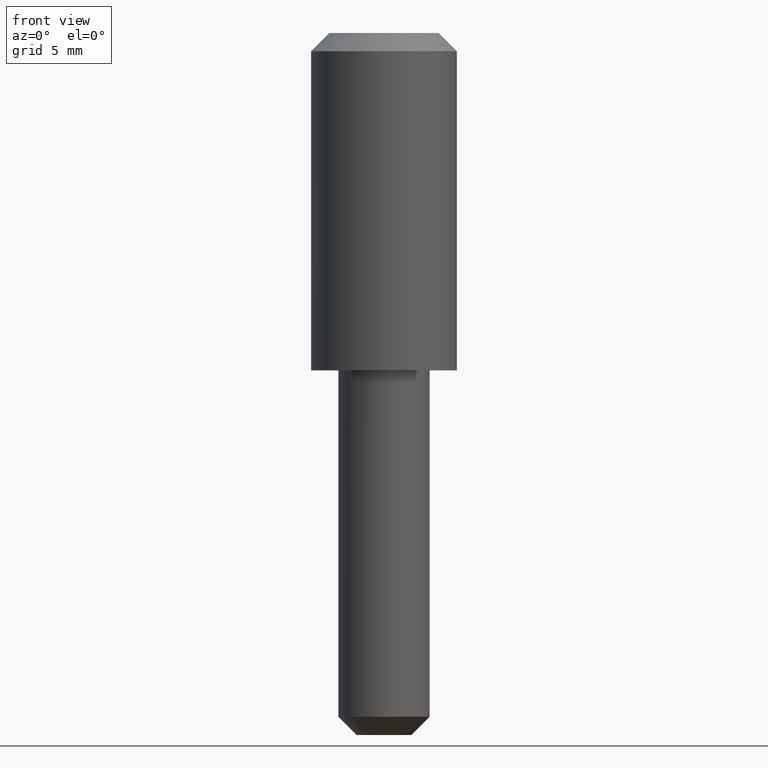
[diagram: clean part render]
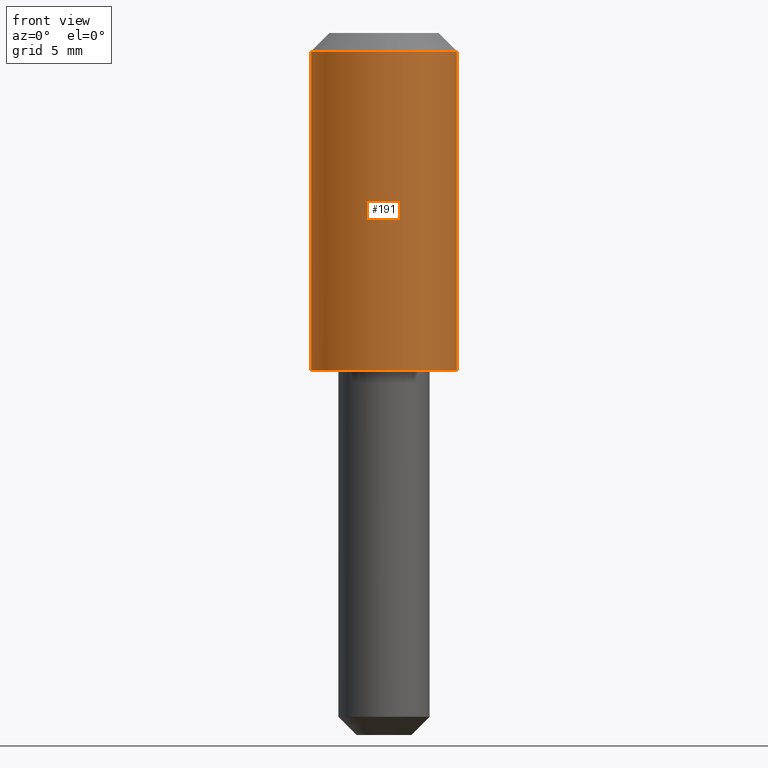
[diagram: same view with one face highlighted and labeled with its STEP entity id]
A machine part, front view. The second image highlights one B-rep face of the part: STEP entity #191.
In plain terms, the highlighted cylindrical surface (partial cylindrical patch) has radius 4 mm, axis along (0, 0, 1).
Its self-contained STEP definition (entity closure, byte-faithful):
#102=CARTESIAN_POINT('',(-4.000000000000007,2.143132E-015,17.500000000000000));
#103=VERTEX_POINT('',#102);
#110=CARTESIAN_POINT('',(4.000000000000028,2.143132E-015,17.500000000000000));
#111=VERTEX_POINT('',#110);
#112=CARTESIAN_POINT('',(0.0,2.143132E-015,17.500000000000000));
#113=DIRECTION('',(0.0,-1.224647E-016,-1.0));
#114=DIRECTION('',(-1.0,0.0,0.0));
#115=AXIS2_PLACEMENT_3D('',#112,#113,#114);
#116=CIRCLE('',#115,4.000000000000004);
#117=EDGE_CURVE('',#111,#103,#116,.T.);
#160=CARTESIAN_POINT('',(0.0,-1.224647E-024,-1.000000E-008));
#161=DIRECTION('',(0.0,1.224647E-016,1.0));
#162=DIRECTION('',(0.0,1.0,-1.224647E-016));
#163=AXIS2_PLACEMENT_3D('',#160,#161,#162);
#164=CYLINDRICAL_SURFACE('',#163,4.000000000000004);
#165=CARTESIAN_POINT('',(-4.000000000000007,0.0,0.0));
#166=VERTEX_POINT('',#165);
#167=CARTESIAN_POINT('',(4.000000000000028,0.0,0.0));
#168=VERTEX_POINT('',#167);
#169=CARTESIAN_POINT('',(0.0,0.0,0.0));
#170=DIRECTION('',(0.0,1.224647E-016,1.0));
#171=DIRECTION('',(1.0,0.0,0.0));
#172=AXIS2_PLACEMENT_3D('',#169,#170,#171);
#173=CIRCLE('',#172,4.000000000000004);
#174=EDGE_CURVE('',#166,#168,#173,.T.);
#175=ORIENTED_EDGE('',*,*,#174,.T.);
#176=CARTESIAN_POINT('',(4.000000000000028,0.0,0.0));
#177=DIRECTION('',(0.0,0.0,1.0));
#178=VECTOR('',#177,17.500000000000000);
#179=LINE('',#176,#178);
#180=EDGE_CURVE('',#168,#111,#179,.T.);
#181=ORIENTED_EDGE('',*,*,#180,.T.);
#182=ORIENTED_EDGE('',*,*,#117,.T.);
#183=CARTESIAN_POINT('',(-4.000000000000007,0.0,0.0));
#184=DIRECTION('',(0.0,0.0,1.0));
#185=VECTOR('',#184,17.500000000000000);
#186=LINE('',#183,#185);
#187=EDGE_CURVE('',#166,#103,#186,.T.);
#188=ORIENTED_EDGE('',*,*,#187,.F.);
#189=EDGE_LOOP('',(#175,#181,#182,#188));
#190=FACE_OUTER_BOUND('',#189,.T.);
#191=ADVANCED_FACE('',(#190),#164,.T.);